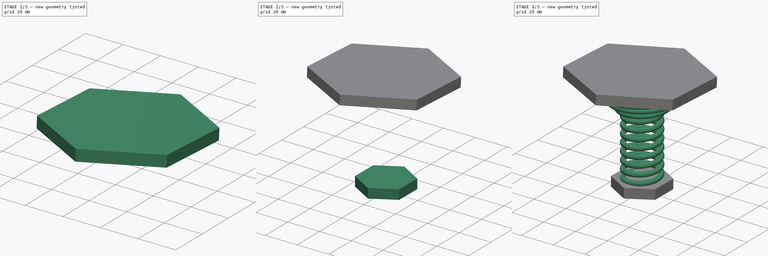
[diagram: build sequence overview — one tinted view per stage of 3, left to right]
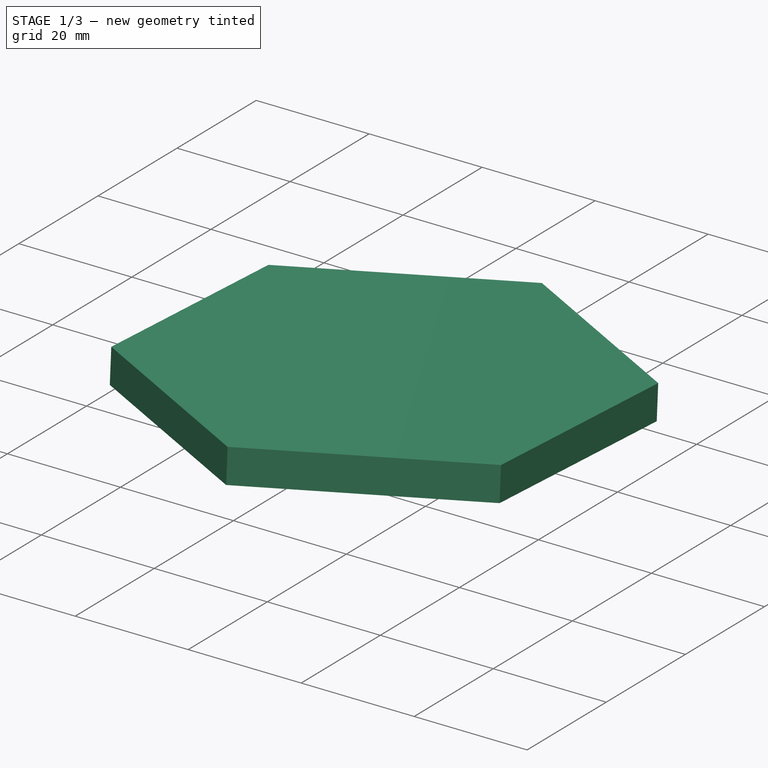
[diagram: stage 1 of 3 — iso view after this stage's code; geometry added in this stage tinted green]
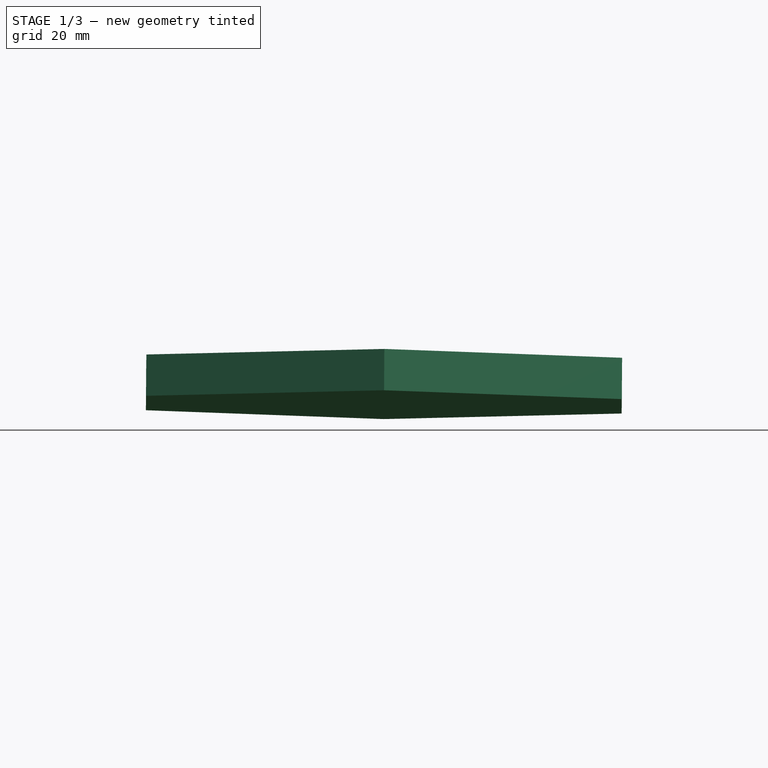
[diagram: stage 1 of 3 — front view after this stage's code; geometry added in this stage tinted green]
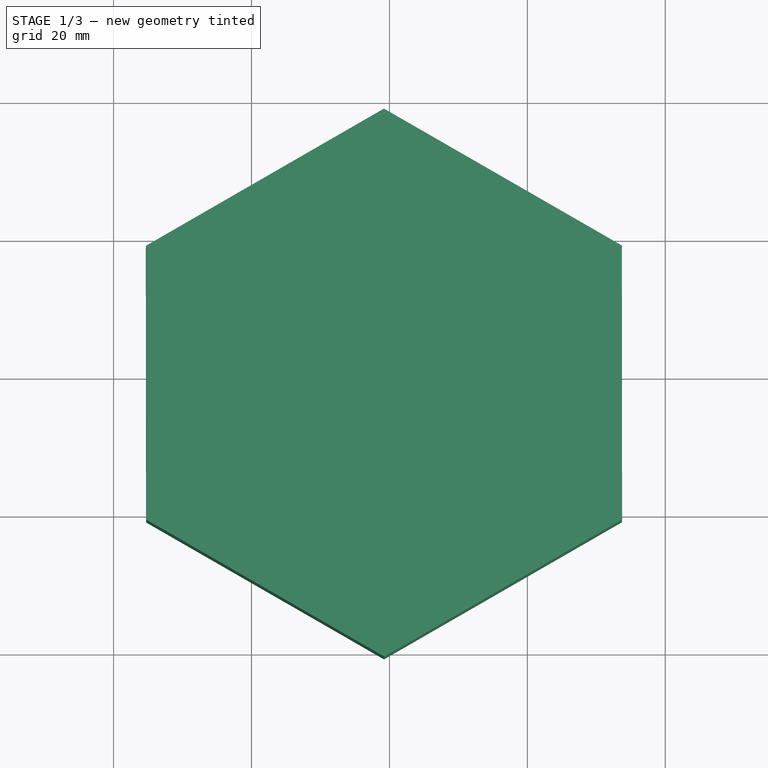
[diagram: stage 1 of 3 — top view after this stage's code; geometry added in this stage tinted green]
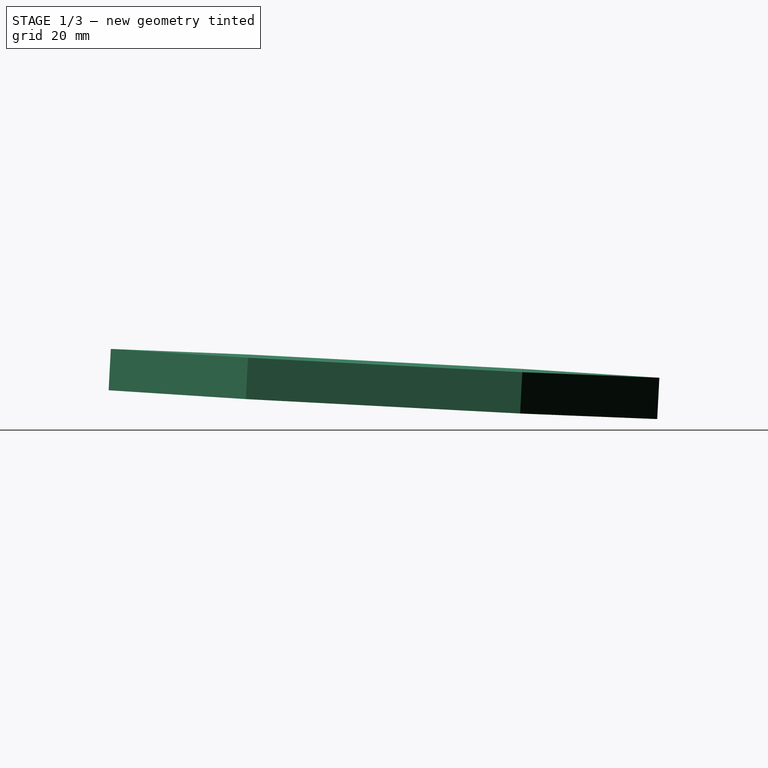
[diagram: stage 1 of 3 — right view after this stage's code; geometry added in this stage tinted green]
FCSTD DOCUMENT  (FreeCAD 0.21R33668 +26 (Git))
Label: Ressort-essai2-1-FEM-2
License: All rights reserved
LicenseURL: http://en.wikipedia.org/wiki/All_rights_reserved
objects: Sketcher::SketchObject×3, Part::Helix×2, Part::Sweep×2, PartDesign::Plane×2, PartDesign::Pad×2, PartDesign::Body×2, PartDesign::ShapeBinder×1, Part::MultiFuse×1
note: 17 computed .brp shape members not serialized (recipe doc carries the construction recipe); baked Part::Feature solids carry a one-line shape summary decoded from their .brp

FEATURE [Part::Helix] Helix001  label="Hélice001"
  Angle = 45
  AttacherType = Attacher::AttachEngine3D
  Height = 20
  LocalCoord = 0
  Pitch = 5
  Placement = pos=(0,0,40) rot=(0,0,1;0rad)
  Radius = 10
  SegmentLength = 0
  Style = 1
FEATURE [Part::Sweep] Sweep001
  Frenet = true
  Placement = pos=(0,0,40) rot=(0,0,1;0rad)
  Sections = -> [Sketch]
  Solid = true
  Spine = -> Helix001
  Transition = 1
FEATURE [PartDesign::Body] Body
  Group = -> [Sketch,DatumPlane,Sketch001,Pad]
  Origin = -> Origin
  Tip = -> Pad
FEATURE [PartDesign::ShapeBinder] ReferenceSweep001
  Placement = pos=(0,0,40) rot=(0,0,1;0rad)
  Support = -> [Sweep001]
  TraceSupport = false
FEATURE [PartDesign::Plane] DatumPlane001
  Length = 97.5241
  MapMode = 8
  Placement = pos=(31.2223,-2.01915,60.0415) rot=(0.999638,0.026587,-0.004143;3.08931rad)
  ResizeMode = 0
  Support = -> [ReferenceSweep001]
  Width = 109.064
FEATURE [Sketcher::SketchObject] Sketch002
  FullyConstrained = false
  MapMode = 5
  Placement = pos=(31.2223,-2.01915,60.0415) rot=(0.999638,0.026587,-0.004143;3.08931rad)
  Support = -> [DatumPlane001]
  sketch-geometry (7):
    g0: LineSegment StartX=3.5913 StartY=-20.9796 StartZ=0 EndX=1.49521 EndY=18.7911 EndZ=0
    g1: LineSegment StartX=1.49521 StartY=18.7911 StartZ=0 EndX=-33.9952 EndY=36.8611 EndZ=0
    g2: LineSegment StartX=-33.9952 StartY=36.8611 StartZ=0 EndX=-67.3896 EndY=15.1605 EndZ=0
    g3: LineSegment StartX=-67.3896 StartY=15.1605 StartZ=0 EndX=-65.2935 EndY=-24.6101 EndZ=0
    g4: LineSegment StartX=-65.2935 StartY=-24.6101 StartZ=0 EndX=-29.803 EndY=-42.6802 EndZ=0
    g5: LineSegment StartX=-29.803 StartY=-42.6802 StartZ=0 EndX=3.5913 EndY=-20.9796 EndZ=0
    g6: Circle CenterX=-31.8991 CenterY=-2.90951 CenterZ=0 NormalX=0 NormalY=0 NormalZ=1 AngleXU=0 Radius=39.8259
  constraints (13):
    c: Coincident(g0,g1)
    c: Coincident(g1,g2)
    c: Coincident(g2,g3)
    c: Coincident(g3,g4)
    c: Coincident(g4,g5)
    c: Coincident(g5,g0)
    c: Equal(g0, g1-g5) x5
    c: PointOnObject(g0,g6)
    c: PointOnObject(g1,g6)
    c: PointOnObject(g2,g6)
    c: PointOnObject(g3,g6)
    c: PointOnObject(g4,g6)
    c: PointOnObject(g5,g6)
FEATURE [PartDesign::Pad] Pad001
  Direction = (-0.00688828,-0.0524625,-0.998599)
  Length = 6
  Length2 = 10
  Midplane = true
  Placement = pos=(31.2223,-2.01915,60.0415) rot=(0.999638,0.026587,-0.004143;3.08931rad)
  Profile = -> Sketch002
  ReferenceAxis = -> Sketch002 [N_Axis]
  Type = 0
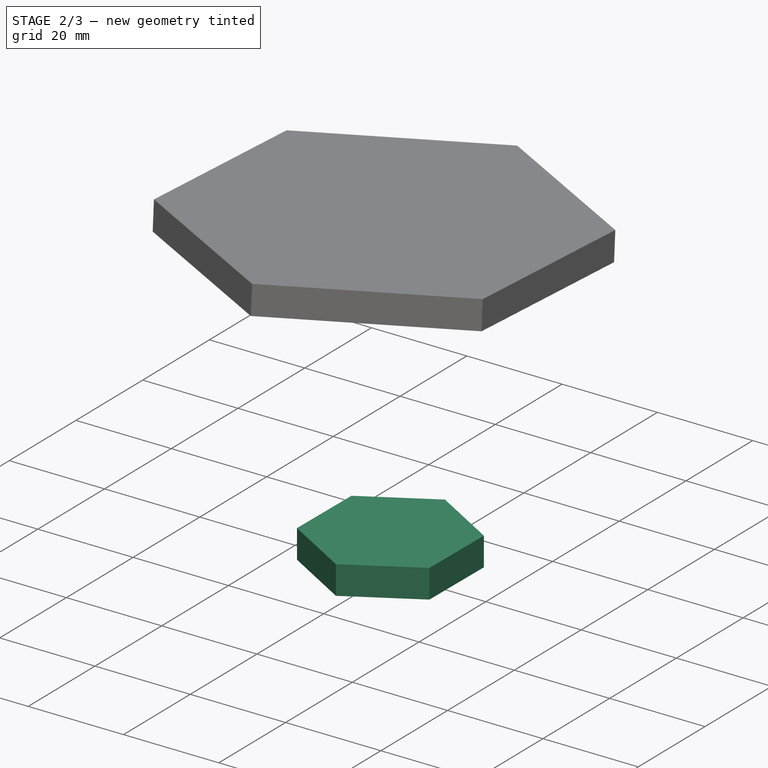
[diagram: stage 2 of 3 — iso view after this stage's code; geometry added in this stage tinted green]
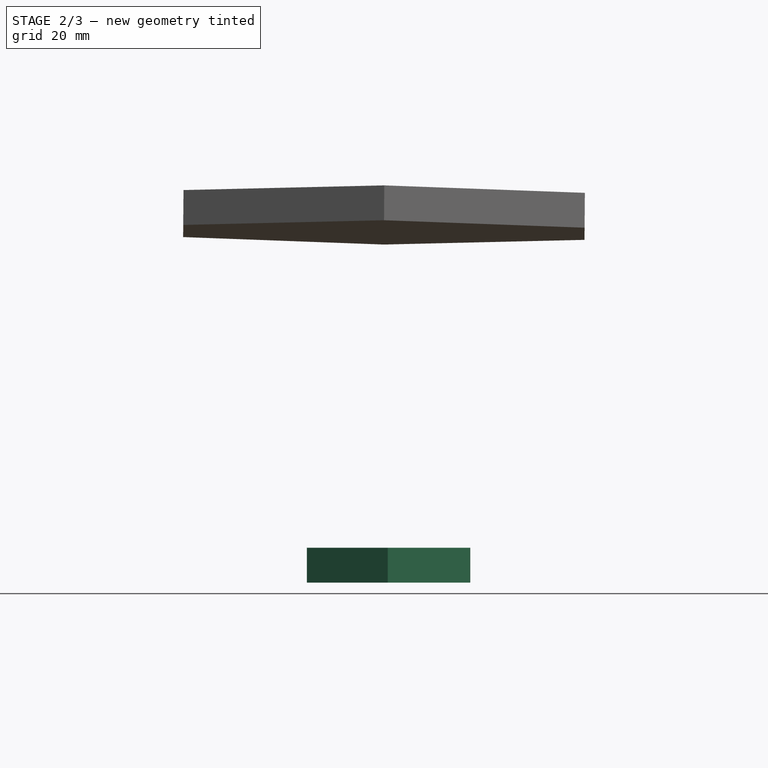
[diagram: stage 2 of 3 — front view after this stage's code; geometry added in this stage tinted green]
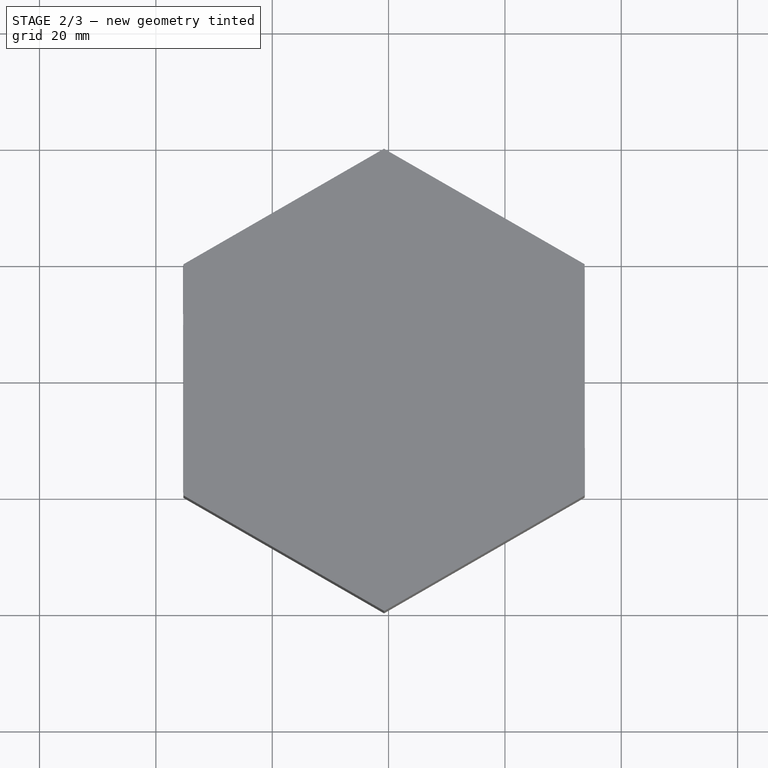
[diagram: stage 2 of 3 — top view after this stage's code; geometry added in this stage tinted green]
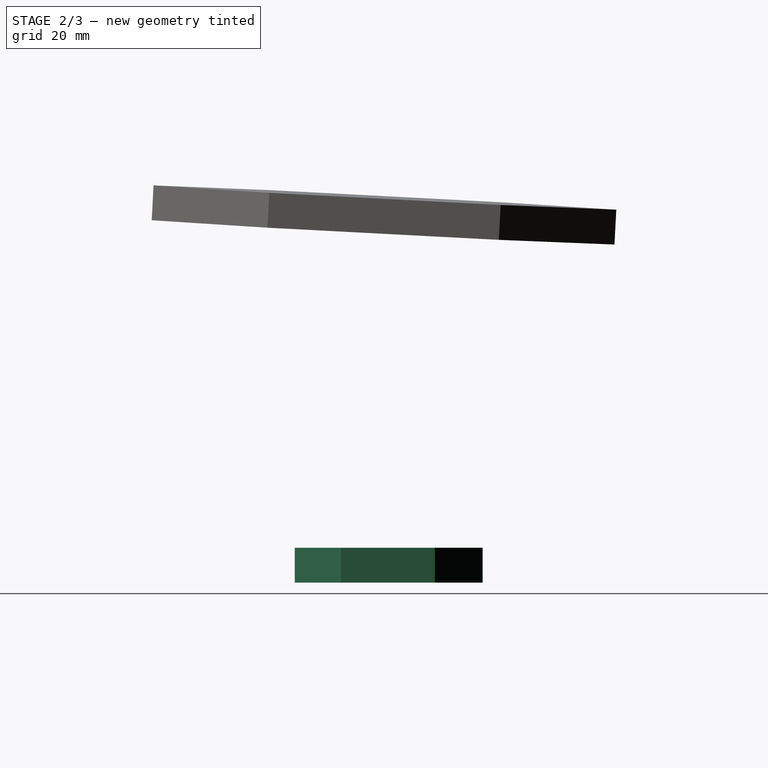
[diagram: stage 2 of 3 — right view after this stage's code; geometry added in this stage tinted green]
FEATURE [PartDesign::Plane] DatumPlane
  Length = 60
  MapMode = 3
  Placement = pos=(0,0,0) rot=(1,0,0;3.14159rad)
  ResizeMode = 0
  Support = -> [Sketch]
  Width = 60
FEATURE [Sketcher::SketchObject] Sketch001
  FullyConstrained = false
  MapMode = 5
  Placement = pos=(0,0,0) rot=(1,0,0;3.14159rad)
  Support = -> [DatumPlane]
  sketch-geometry (7):
    g0: LineSegment StartX=13.9076 StartY=8.18793 StartZ=0 EndX=-0.137134 EndY=16.1383 EndZ=0
    g1: LineSegment StartX=-0.137134 StartY=16.1383 StartZ=0 EndX=-14.0448 EndY=7.95041 EndZ=0
    g2: LineSegment StartX=-14.0448 StartY=7.95041 StartZ=0 EndX=-13.9076 EndY=-8.18793 EndZ=0
    g3: LineSegment StartX=-13.9076 StartY=-8.18793 StartZ=0 EndX=0.137134 EndY=-16.1383 EndZ=0
    g4: LineSegment StartX=0.137134 StartY=-16.1383 StartZ=0 EndX=14.0448 EndY=-7.95041 EndZ=0
    g5: LineSegment StartX=14.0448 StartY=-7.95041 StartZ=0 EndX=13.9076 EndY=8.18793 EndZ=0
    g6: Circle CenterX=0 CenterY=0 CenterZ=0 NormalX=0 NormalY=0 NormalZ=1 AngleXU=0 Radius=16.1389
  constraints (14):
    c: Coincident(g0,g1)
    c: Coincident(g1,g2)
    c: Coincident(g2,g3)
    c: Coincident(g3,g4)
    c: Coincident(g4,g5)
    c: Coincident(g5,g0)
    c: Equal(g0, g1-g5) x5
    c: PointOnObject(g0,g6)
    c: PointOnObject(g1,g6)
    c: PointOnObject(g2,g6)
    c: PointOnObject(g3,g6)
    c: PointOnObject(g4,g6)
    c: PointOnObject(g5,g6)
    c: Coincident(g6,g-1)
FEATURE [PartDesign::Pad] Pad
  Direction = (0,-2e-16,-1)
  Length = 6
  Length2 = 10
  Midplane = true
  Placement = pos=(0,0,0) rot=(1,0,0;3.14159rad)
  Profile = -> Sketch001
  ReferenceAxis = -> Sketch001 [N_Axis]
  Type = 0
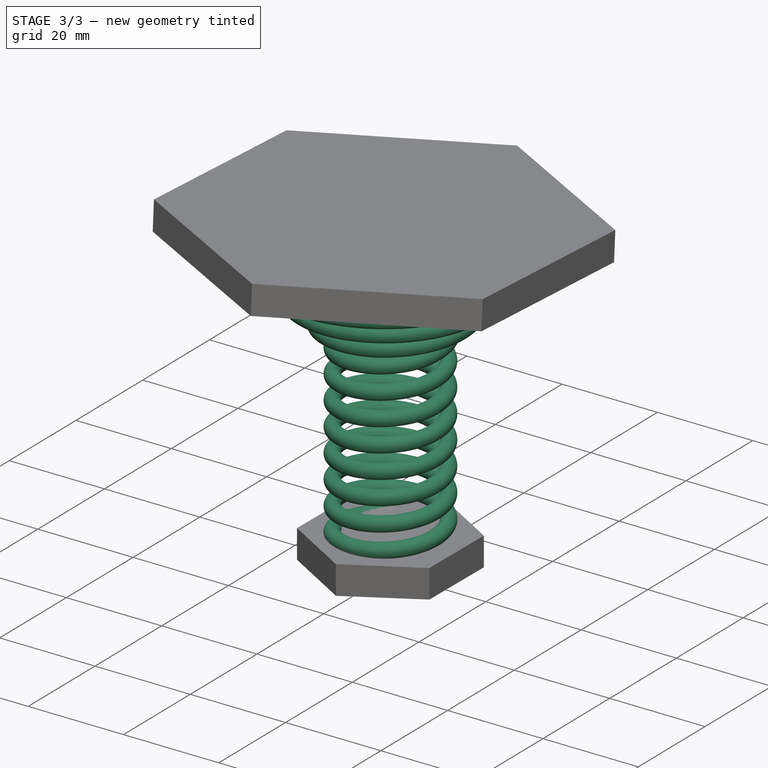
[diagram: stage 3 of 3 — iso view after this stage's code; geometry added in this stage tinted green]
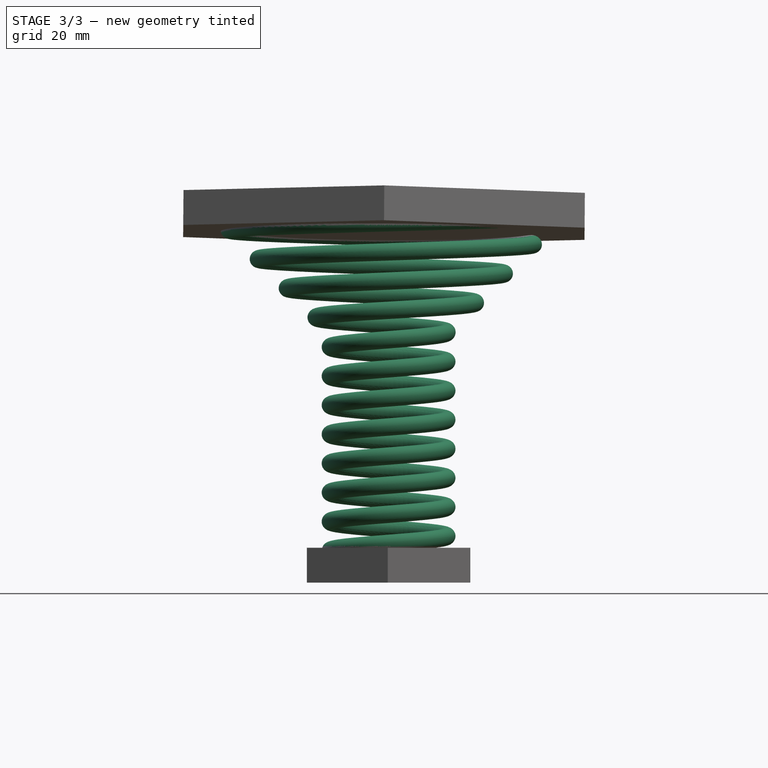
[diagram: stage 3 of 3 — front view after this stage's code; geometry added in this stage tinted green]
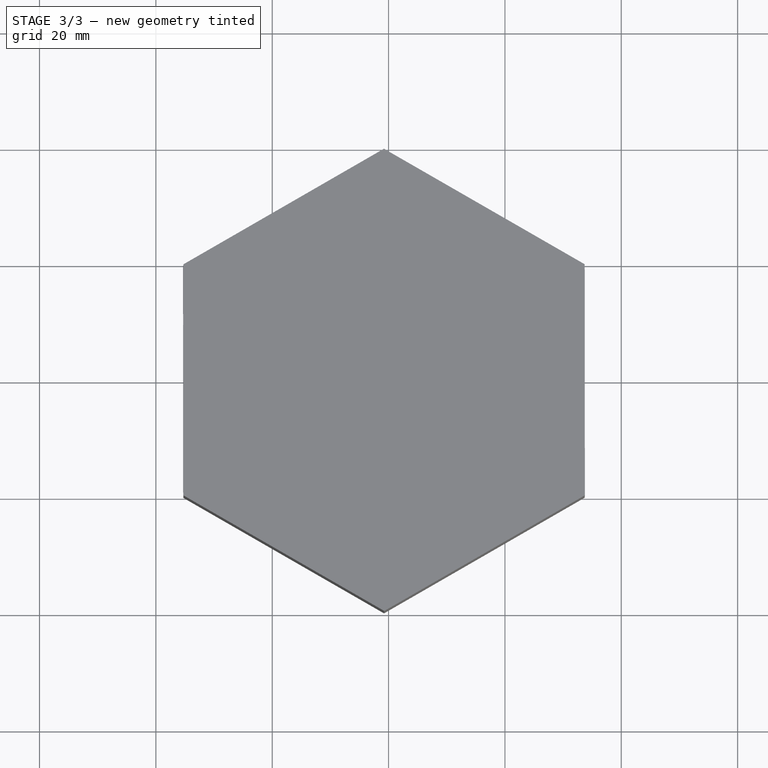
[diagram: stage 3 of 3 — top view after this stage's code; geometry added in this stage tinted green]
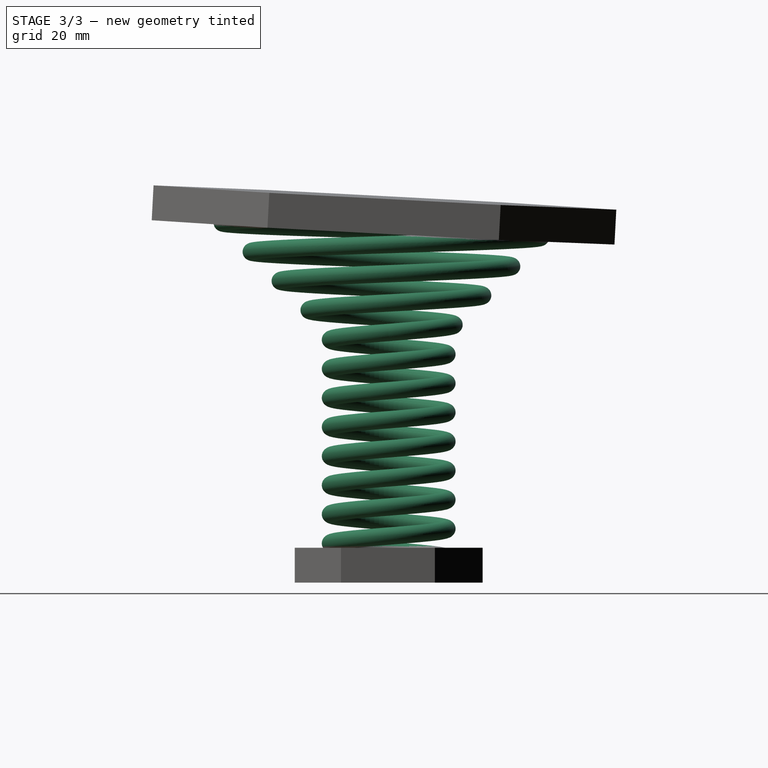
[diagram: stage 3 of 3 — right view after this stage's code; geometry added in this stage tinted green]
FEATURE [Part::Helix] Helix  label="Hélice"
  Angle = 0
  AttacherType = Attacher::AttachEngine3D
  Height = 40
  LocalCoord = 0
  Pitch = 5
  Radius = 10
  SegmentLength = 0
  Style = 1
FEATURE [Sketcher::SketchObject] Sketch  label="Profile"
  FullyConstrained = true
  MapMode = 5
  Placement = pos=(0,0,0) rot=(1,0,0;1.5708rad)
  Support = -> [XZ_Plane]
  sketch-geometry (1):
    g0: Circle CenterX=10 CenterY=0 CenterZ=0 NormalX=0 NormalY=0 NormalZ=1 AngleXU=0 Radius=1.5
  constraints (3):
    c: PointOnObject(g0,g-1)
    c: Radius(g0) = 1.5
    c: DistanceX(g-1,g0) = 10
FEATURE [Part::Sweep] Sweep
  Frenet = true
  Sections = -> [Sketch]
  Solid = true
  Spine = -> Helix
  Transition = 1
FEATURE [PartDesign::Body] Body001  label="Corps"
  Group = -> [DatumPlane001,ReferenceSweep001,Sketch002,Pad001]
  Origin = -> Origin001
  Tip = -> Pad001
FEATURE [Part::MultiFuse] Fusion
  Shapes = -> [Body,Sweep,Sweep001,Body001]
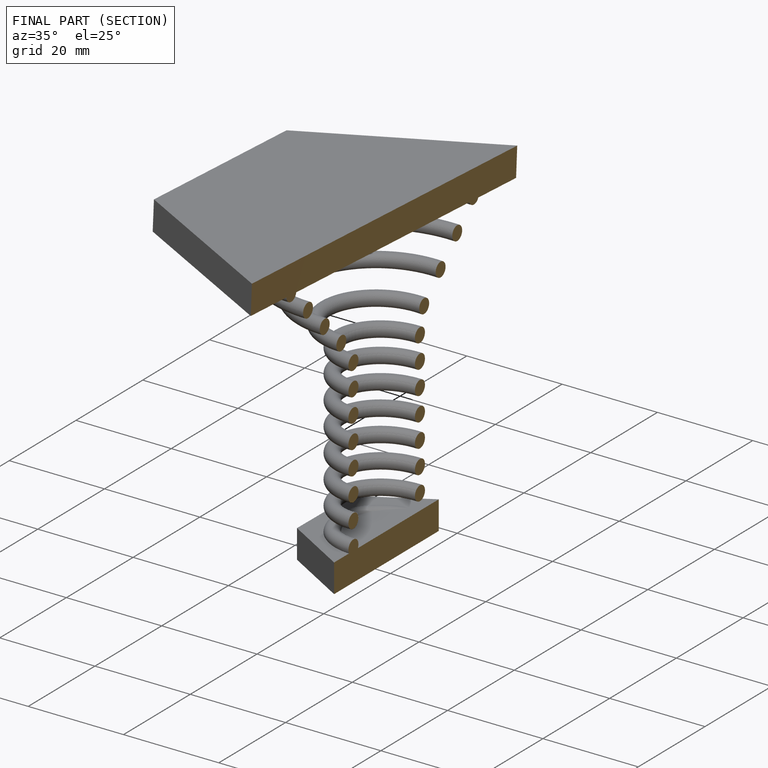
[diagram: finished part — half-section view (interior)]
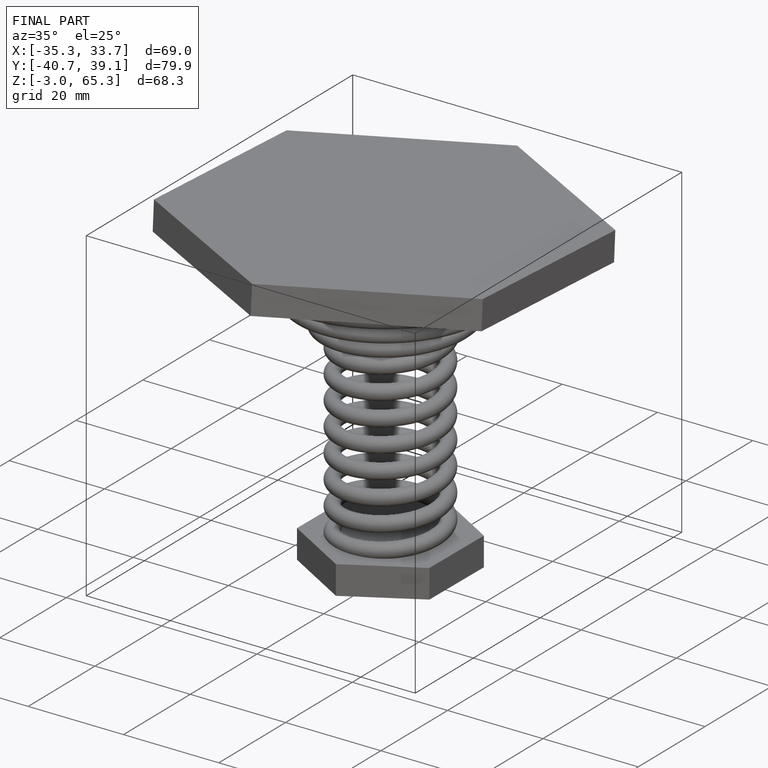
[diagram: finished part — iso view with bounding-box wireframe]
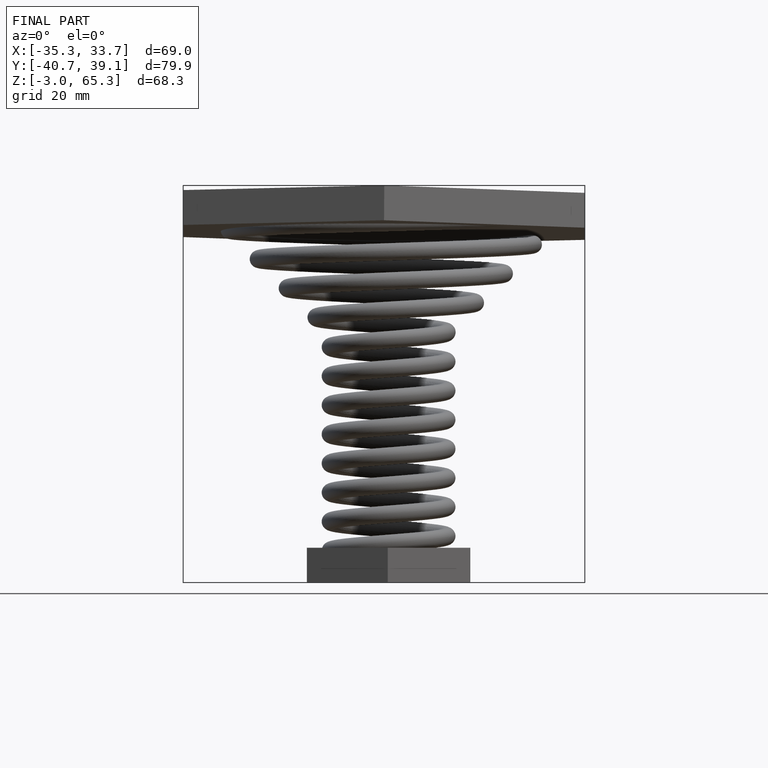
[diagram: finished part — front view with bounding-box wireframe]
